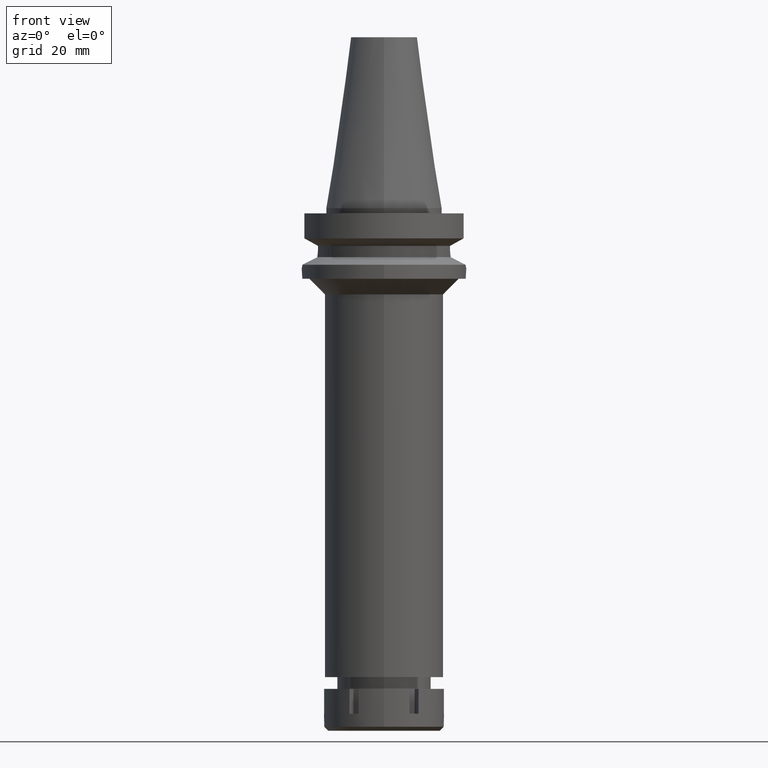
[diagram: clean part render]
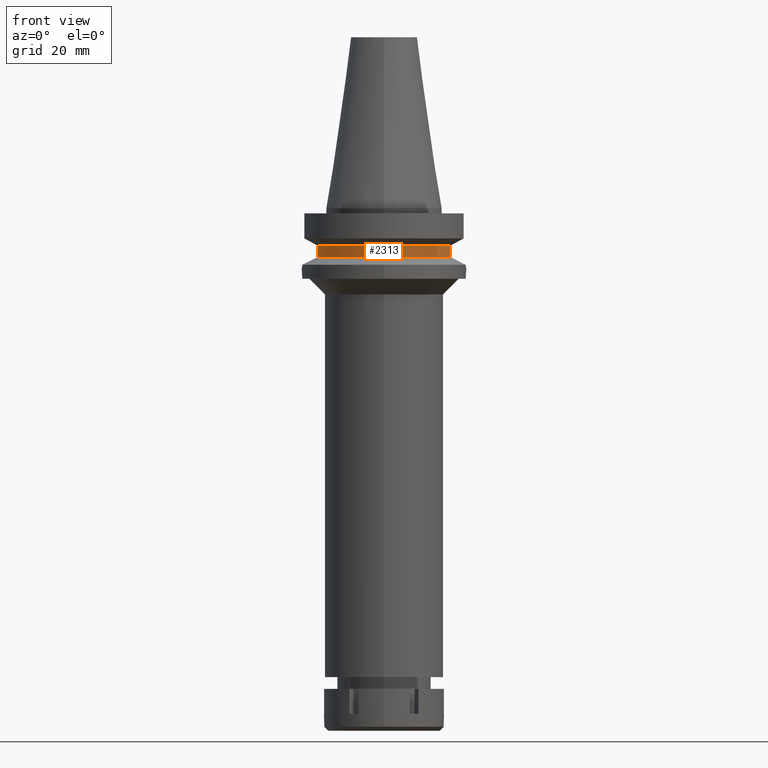
[diagram: same view with one face highlighted and labeled with its STEP entity id]
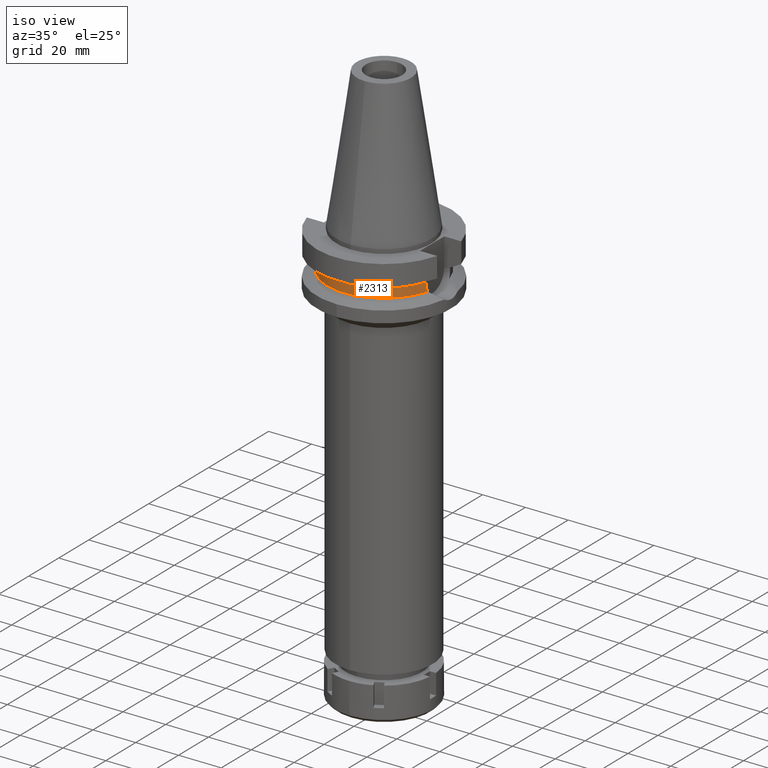
[diagram: same view with one face highlighted and labeled with its STEP entity id]
A machine part, front view. The second image highlights one B-rep face of the part: STEP entity #2313.
A second angle (iso view) of the same face is appended — the face is thin or edge-on in the first view.
In plain terms, the highlighted cylindrical surface (partial cylindrical patch) has radius 26.5 mm, axis along (0, 0, -1).
Its self-contained STEP definition (entity closure, byte-faithful):
#46 = CARTESIAN_POINT ( 'NONE',  ( -25.33292553851982021, -7.777985707516910097, -17.02558215515376716 ) ) ;
#60 = CARTESIAN_POINT ( 'NONE',  ( 25.24772266958000344, -8.050000000000000711, -14.45225699861000024 ) ) ;
#72 = CARTESIAN_POINT ( 'NONE',  ( -25.53175183775000079, -7.097862220092999941, -18.74774300138999905 ) ) ;
#93 = CARTESIAN_POINT ( 'NONE',  ( 25.31205759391835386, -7.845621557332120410, -16.75326793493535504 ) ) ;
#112 = CARTESIAN_POINT ( 'NONE',  ( 25.31652055493196940, -7.831184758221566788, -16.81426458565759319 ) ) ;
#129 = CARTESIAN_POINT ( 'NONE',  ( 25.31954463780457942, -7.821394976199189664, -16.85491936549159320 ) ) ;
#131 = ORIENTED_EDGE ( 'NONE', *, *, #193, .F. ) ;
#193 = EDGE_CURVE ( 'NONE', #1960, #1017, #1191, .T. ) ;
#390 = CARTESIAN_POINT ( 'NONE',  ( 25.24772266957998923, -8.049999999999998934, -15.27000127550211950 ) ) ;
#418 = AXIS2_PLACEMENT_3D ( 'NONE', #3433, #2927, #2362 ) ;
#423 = ORIENTED_EDGE ( 'NONE', *, *, #1170, .T. ) ;
#539 = VERTEX_POINT ( 'NONE', #2566 ) ;
#565 = LINE ( 'NONE', #1929, #1581 ) ;
#588 = CIRCLE ( 'NONE', #1706, 26.50000000000000000 ) ;
#611 = EDGE_LOOP ( 'NONE', ( #131, #423, #3233, #1495, #3385, #1959 ) ) ;
#616 = CARTESIAN_POINT ( 'NONE',  ( 25.24772266958000344, -8.050000000000000711, -14.94999999999999929 ) ) ;
#644 = EDGE_CURVE ( 'NONE', #2030, #983, #2850, .T. ) ;
#733 = CARTESIAN_POINT ( 'NONE',  ( -25.32419265906723282, -7.806329682138570369, -16.91574545218071890 ) ) ;
#982 = CARTESIAN_POINT ( 'NONE',  ( -25.24772266958000344, -8.050000000000000711, -14.94999999999999929 ) ) ;
#983 = VERTEX_POINT ( 'NONE', #1390 ) ;
#1017 = VERTEX_POINT ( 'NONE', #2486 ) ;
#1024 = CARTESIAN_POINT ( 'NONE',  ( 25.29454717857531065, -7.902012029793996639, -16.48868902740021269 ) ) ;
#1039 = CARTESIAN_POINT ( 'NONE',  ( 0.0000000000000000000, 2.183177848839999781E-14, 78.27000000000001023 ) ) ;
#1051 = AXIS2_PLACEMENT_3D ( 'NONE', #1039, #2146, #3273 ) ;
#1115 = CARTESIAN_POINT ( 'NONE',  ( -25.35411833098771339, -7.708843546317146078, -17.27003765535713953 ) ) ;
#1170 = EDGE_CURVE ( 'NONE', #1960, #539, #588, .T. ) ;
#1191 = B_SPLINE_CURVE_WITH_KNOTS ( 'NONE', 3,
 ( #72, #1951, #2999, #1934, #2457, #1115, #3346, #46, #2864, #1697, #733, #2383, #2943, #1962 ),
 .UNSPECIFIED., .F., .F.,
 ( 4, 2, 2, 1, 1, 2, 2, 4 ),
 ( 0.0000000000000000000, 0.2500000000000225930, 0.3750000000000351386, 0.4375000000000401901, 0.4687500000000426326, 0.4843750000000427436, 0.5000000000000427436, 1.000000000000000000 ),
 .UNSPECIFIED. ) ;
#1255 = CARTESIAN_POINT ( 'NONE',  ( 25.36818304347313813, -7.663708172145562436, -17.48836484274151104 ) ) ;
#1267 = CARTESIAN_POINT ( 'NONE',  ( 25.53175183775000079, -7.097862220092999941, -18.74774300138999905 ) ) ;
#1304 = CARTESIAN_POINT ( 'NONE',  ( 25.25396593744603990, -8.030896968459813934, -15.59377931111265170 ) ) ;
#1331 = EDGE_CURVE ( 'NONE', #2030, #2129, #565, .T. ) ;
#1390 = CARTESIAN_POINT ( 'NONE',  ( -25.24772413111999825, -8.049995416064998466, -14.45229202584999939 ) ) ;
#1485 = DIRECTION ( 'NONE',  ( 0.0000000000000000000, -1.000000000000000000, 0.0000000000000000000 ) ) ;
#1495 = ORIENTED_EDGE ( 'NONE', *, *, #1331, .F. ) ;
#1500 = DIRECTION ( 'NONE',  ( -2.936548755724931564E-06, 9.210088831163782246E-06, 0.9999999999532754869 ) ) ;
#1522 = CARTESIAN_POINT ( 'NONE',  ( 25.24772266958000344, -8.050000000000000711, -14.94999999999999929 ) ) ;
#1581 = VECTOR ( 'NONE', #1986, 999.9999999999998863 ) ;
#1595 = FACE_OUTER_BOUND ( 'NONE', #611, .T. ) ;
#1697 = CARTESIAN_POINT ( 'NONE',  ( -25.32550226136643445, -7.802082245155482099, -16.93251888163180396 ) ) ;
#1706 = AXIS2_PLACEMENT_3D ( 'NONE', #2346, #3154, #1485 ) ;
#1819 = CARTESIAN_POINT ( 'NONE',  ( 25.32121872273810936, -7.815971166073770959, -16.87703378351424632 ) ) ;
#1929 = CARTESIAN_POINT ( 'NONE',  ( 25.24772216353000331, -8.050001587143000847, -14.45224487143999959 ) ) ;
#1934 = CARTESIAN_POINT ( 'NONE',  ( -25.39164478449575668, -7.584820969897874576, -17.65194245035706544 ) ) ;
#1951 = CARTESIAN_POINT ( 'NONE',  ( -25.48481820018342248, -7.266687417052686726, -18.43221401828698802 ) ) ;
#1959 = ORIENTED_EDGE ( 'NONE', *, *, #3459, .F. ) ;
#1960 = VERTEX_POINT ( 'NONE', #1963 ) ;
#1962 = CARTESIAN_POINT ( 'NONE',  ( -25.24772266958000344, -8.050000000000000711, -14.94999999999999929 ) ) ;
#1963 = CARTESIAN_POINT ( 'NONE',  ( -25.53175183775000079, -7.097862220092999941, -18.74774300138999905 ) ) ;
#1986 = DIRECTION ( 'NONE',  ( 1.016655027073999510E-06, 3.188601129083999011E-06, -0.9999999999943997020 ) ) ;
#2030 = VERTEX_POINT ( 'NONE', #60 ) ;
#2129 = VERTEX_POINT ( 'NONE', #616 ) ;
#2141 = VECTOR ( 'NONE', #1500, 1000.000000000000000 ) ;
#2146 = DIRECTION ( 'NONE',  ( 0.0000000000000000000, 0.0000000000000000000, -1.000000000000000000 ) ) ;
#2313 = ADVANCED_FACE ( 'NONE', ( #1595 ), #3552, .T. ) ;
#2346 = CARTESIAN_POINT ( 'NONE',  ( 0.0000000000000000000, 0.0000000000000000000, -18.74774300138999905 ) ) ;
#2354 = CARTESIAN_POINT ( 'NONE',  ( 25.43788636139897008, -7.435506143601751106, -18.11669712818196487 ) ) ;
#2362 = DIRECTION ( 'NONE',  ( 0.9527442516822307583, -0.3037735849057093818, 0.0000000000000000000 ) ) ;
#2383 = CARTESIAN_POINT ( 'NONE',  ( -25.27269246206562769, -7.973290322421786591, -16.24535685341015068 ) ) ;
#2457 = CARTESIAN_POINT ( 'NONE',  ( -25.37572817765897071, -7.637723572224845547, -17.49814693645483743 ) ) ;
#2486 = CARTESIAN_POINT ( 'NONE',  ( -25.24772266958000344, -8.050000000000000711, -14.94999999999999929 ) ) ;
#2566 = CARTESIAN_POINT ( 'NONE',  ( 25.53175183775000079, -7.097862220092999941, -18.74774300138999905 ) ) ;
#2605 = CARTESIAN_POINT ( 'NONE',  ( 25.27269574104416705, -7.971769475027993046, -16.08146184949839608 ) ) ;
#2625 = CARTESIAN_POINT ( 'NONE',  ( 25.30215616128704426, -7.877576232118708610, -16.61085564857137342 ) ) ;
#2850 = CIRCLE ( 'NONE', #418, 26.50000000000000711 ) ;
#2864 = CARTESIAN_POINT ( 'NONE',  ( -25.32844325893299242, -7.792538688758869014, -16.96970524096792232 ) ) ;
#2927 = DIRECTION ( 'NONE',  ( 0.0000000000000000000, 0.0000000000000000000, -1.000000000000000000 ) ) ;
#2943 = CARTESIAN_POINT ( 'NONE',  ( -25.24772266957999634, -8.049999999999979394, -15.58999073685843051 ) ) ;
#2999 = CARTESIAN_POINT ( 'NONE',  ( -25.44392473217403960, -7.408251102518685016, -18.11706870841285877 ) ) ;
#3066 = EDGE_CURVE ( 'NONE', #2129, #539, #3611, .T. ) ;
#3154 = DIRECTION ( 'NONE',  ( 0.0000000000000000000, 0.0000000000000000000, 1.000000000000000000 ) ) ;
#3233 = ORIENTED_EDGE ( 'NONE', *, *, #3066, .F. ) ;
#3273 = DIRECTION ( 'NONE',  ( 0.0000000000000000000, -1.000000000000000000, 0.0000000000000000000 ) ) ;
#3346 = CARTESIAN_POINT ( 'NONE',  ( -25.34387967354808424, -7.742345491372923050, -17.15662736175767833 ) ) ;
#3385 = ORIENTED_EDGE ( 'NONE', *, *, #644, .T. ) ;
#3433 = CARTESIAN_POINT ( 'NONE',  ( 0.0000000000000000000, 1.065333950388000029E-14, -14.45225699861000024 ) ) ;
#3459 = EDGE_CURVE ( 'NONE', #1017, #983, #3488, .T. ) ;
#3488 = LINE ( 'NONE', #982, #2141 ) ;
#3538 = CARTESIAN_POINT ( 'NONE',  ( 25.28049982587671707, -7.946985634408026300, -16.24435369768701065 ) ) ;
#3552 = CYLINDRICAL_SURFACE ( 'NONE', #1051, 26.50000000000000000 ) ;
#3611 = B_SPLINE_CURVE_WITH_KNOTS ( 'NONE', 3,
 ( #1522, #390, #1304, #2605, #3538, #1024, #2625, #93, #112, #129, #1819, #1255, #2354, #1267 ),
 .UNSPECIFIED., .F., .F.,
 ( 4, 2, 2, 1, 1, 2, 2, 4 ),
 ( 0.0000000000000000000, 0.2499999999999946709, 0.3749999999999906741, 0.4374999999999886757, 0.4687499999999876765, 0.4843749999999870104, 0.4999999999999863443, 1.000000000000000000 ),
 .UNSPECIFIED. ) ;